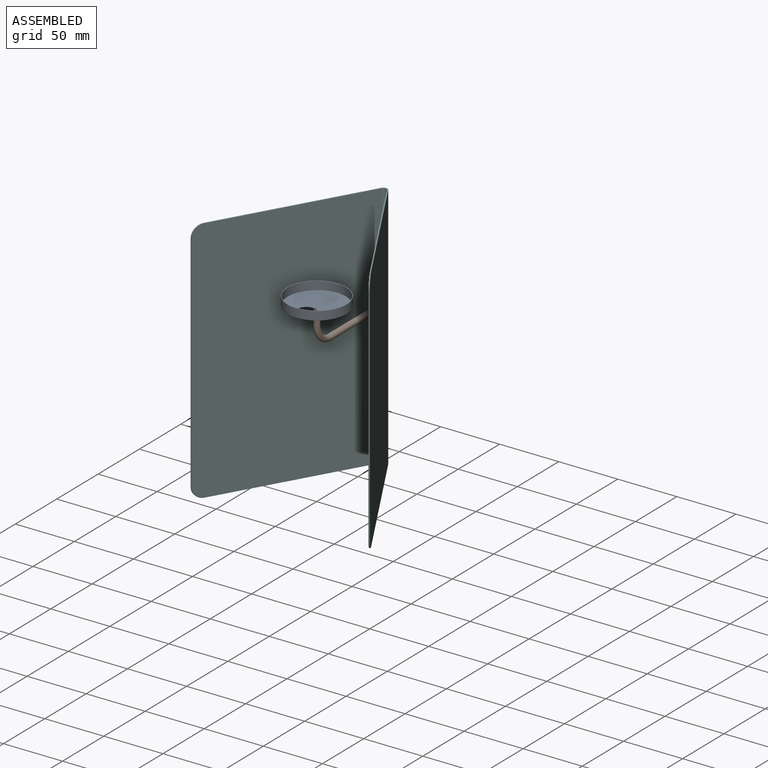
[diagram: assembled view]
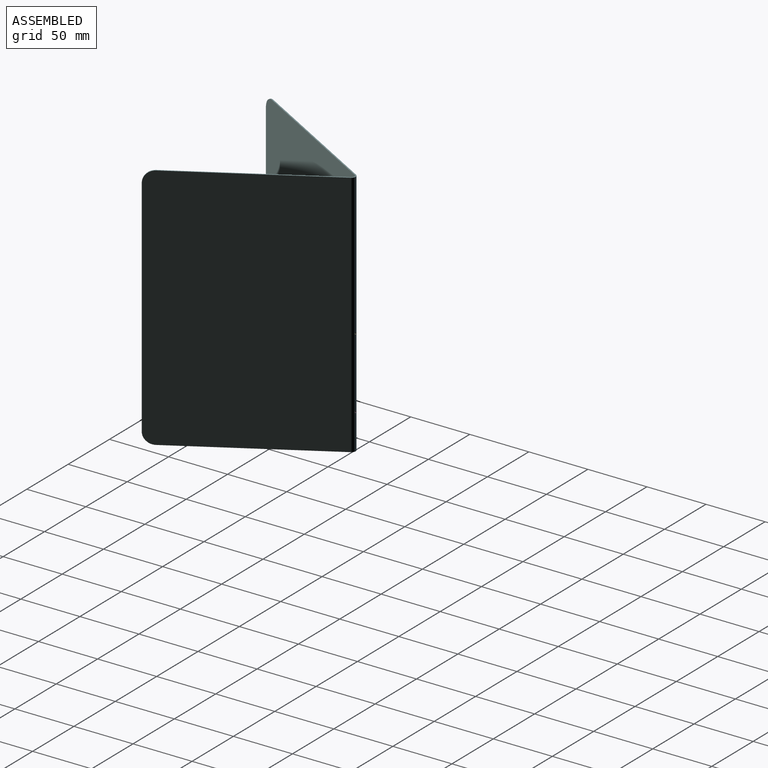
[diagram: assembled view, second angle]
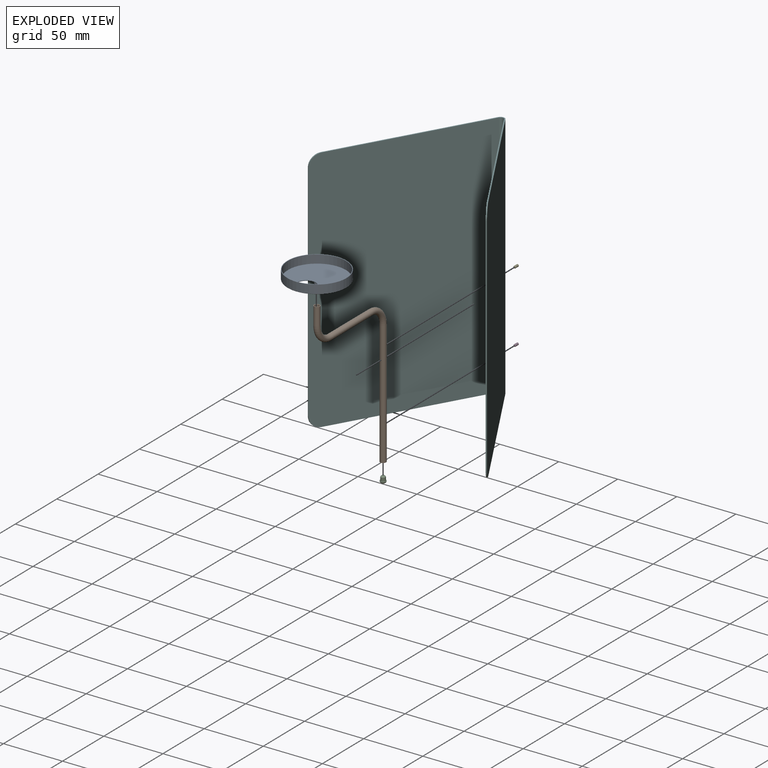
[diagram: exploded view]
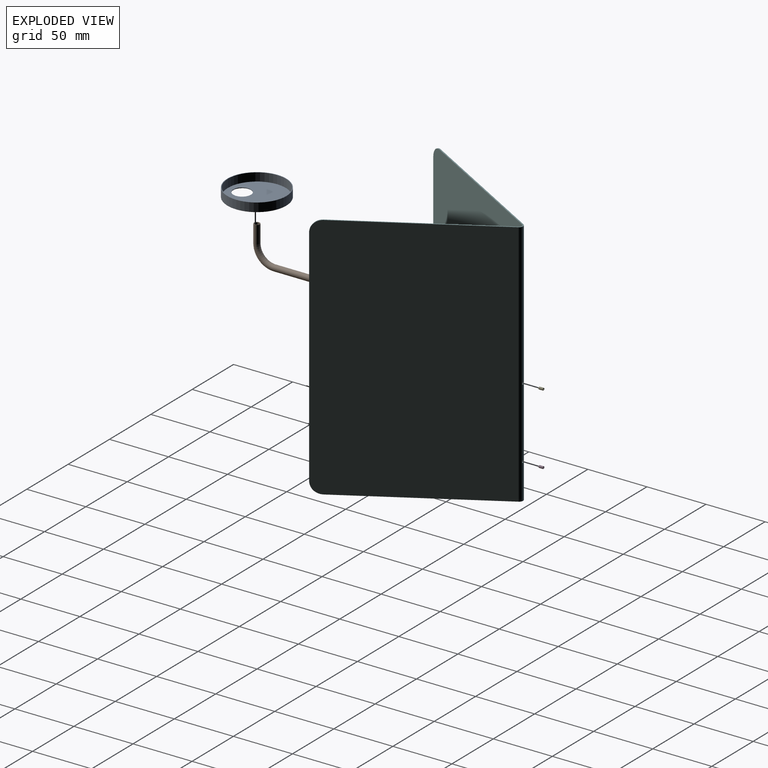
[diagram: exploded view, second angle]
ASSEMBLY  parts=6 mates=5
PART A: 11 faces, bbox 54.1x54.1x17.5 mm
  f0: cylinder r=25mm len=50mm, axis (0,0,-1), area 1131mm2, adj f3,f5
  f1: plane 49.4x49.4mm, normal (0,0,-1), area 1726.1mm2, adj f5,f6,f10
  f2: cylinder r=24.5mm len=49mm, axis (0,0,-1), area 1077.6mm2, adj f3,f4
  f3: plane 50x50mm, normal (0,0,1), area 77.8mm2, adj f0,f2
  f4: plane 49x49mm, normal (0,0,1), area 1709mm2, adj f2,f6
  f5: torus R=24.7mm, axis (0,0,1), area 73.7mm2, adj f0,f1
  f6: cylinder r=7.5mm len=15mm, axis (0,0,1), area 23.6mm2, adj f1,f4
  f7: cylinder r=2mm len=8.9mm, axis (0,0,1), area 111.8mm2, adj f9,f10
  f8: plane 2x2mm, normal (0,0,-1), area 3.1mm2, adj f9
  f9: cone r=1mm half-angle=45deg, axis (0,0,1), area 13.3mm2, adj f7,f8
  f10: torus R=2.1mm, axis (0,0,1), area 2mm2, adj f1,f7
PART B: 15 faces, bbox 5x87.9x150 mm
  f0: cylinder r=2.5mm len=105mm, axis (0,0,1), area 1642.9mm2, adj f1,f5,f13,f14
  f1: torus R=15mm, axis (1,0,0), area 370.1mm2, adj f0,f2
  f2: cylinder r=2.5mm len=50mm, axis (0,-1,0), area 785.4mm2, adj f1,f3
  f3: torus R=15mm, axis (-1,0,0), area 370.1mm2, adj f2,f4
  f4: cylinder r=2.5mm len=15mm, axis (0,0,1), area 235.6mm2, adj f3,f6
  f5: plane 5x5mm, normal (0,0,-1), area 7.1mm2, adj f0,f7
  f6: plane 5x5mm, normal (0,0,1), area 5.8mm2, adj f4,f12
  f7: cylinder r=2mm len=105mm, axis (0,0,1), area 1313mm2, adj f5,f8,f13,f14
  f8: torus R=15mm, axis (1,0,0), area 296.1mm2, adj f7,f9
  f9: cylinder r=2mm len=50mm, axis (0,-1,0), area 628.3mm2, adj f8,f10
  f10: torus R=15mm, axis (-1,0,0), area 296.1mm2, adj f9,f11
  f11: cylinder r=2mm len=14.9mm, axis (0,0,1), area 187.2mm2, adj f10,f12
  f12: torus R=2.1mm, axis (0,0,1), area 2mm2, adj f6,f11
  f13: cylinder r=1mm len=2mm, axis (0,-1,0), area 3.3mm2, adj f0,f7
  f14: cylinder r=1mm len=2mm, axis (0,-1,0), area 3.3mm2, adj f0,f7
PART C: 6 faces, bbox 5x5x6 mm
  f0: plane 1x1mm, normal (0,0,-1), area 0.8mm2, adj f2
  f1: plane 5x5mm, normal (0,0,1), area 7.1mm2, adj f2,f3
  f2: torus R=0.5mm, axis (0,0,-1), area 35mm2, adj f0,f1
  f3: cylinder r=2mm len=4mm, axis (0,0,-1), area 37.7mm2, adj f1,f5
  f4: plane 2x2mm, normal (0,0,1), area 3.1mm2, adj f5
  f5: cone r=1mm half-angle=45deg, axis (0,0,-1), area 13.3mm2, adj f3,f4
PART D: 17 faces, bbox 2x4x2 mm
  f0: plane 2x2mm, normal (0,1,0), area 1.7mm2, adj f1,f4,f5,f6,f7,f8,f9
  f1: cylinder r=1mm len=3.5mm, axis (0,1,0), area 22mm2, adj f0,f3
  f2: plane 1x1mm, normal (0,-1,0), area 0.8mm2, adj f3
  f3: cone r=0.5mm half-angle=45deg, axis (0,1,0), area 3.3mm2, adj f1,f2
  f4: plane 0.75x0.3mm, normal (-1,0,0), area 0.2mm2, adj f0,f5,f9,f13
  f5: plane 0.65x0.38mm, normal (-0.5,0,0.87), area 0.2mm2, adj f0,f4,f6,f15
  f6: plane 0.65x0.38mm, normal (0.5,0,0.87), area 0.2mm2, adj f0,f5,f7,f16
  f7: plane 0.75x0.3mm, normal (1,0,0), area 0.2mm2, adj f0,f6,f8,f14
  f8: plane 0.65x0.38mm, normal (0.5,0,-0.87), area 0.2mm2, adj f0,f7,f9,f12
  f9: plane 0.65x0.38mm, normal (-0.5,0,-0.87), area 0.2mm2, adj f0,f4,f8,f11
  f10: plane 1.04x0.9mm, normal (0,1,0), area 0.7mm2, adj f11,f12,f13,f14,f15,f16
  f11: plane 0.65x0.49mm, normal (-0.35,0.71,-0.61), area 0.2mm2, adj f9,f10,f12,f13
  f12: plane 0.65x0.49mm, normal (0.35,0.71,-0.61), area 0.2mm2, adj f8,f10,f11,f14
  f13: plane 0.75x0.2mm, normal (-0.71,0.71,0), area 0.2mm2, adj f4,f10,f11,f15
  f14: plane 0.75x0.2mm, normal (0.71,0.71,0), area 0.2mm2, adj f7,f10,f12,f16
  f15: plane 0.65x0.49mm, normal (-0.35,0.71,0.61), area 0.2mm2, adj f5,f10,f13,f16
  f16: plane 0.65x0.49mm, normal (0.35,0.71,0.61), area 0.2mm2, adj f6,f10,f14,f15
PART E: same geometry as D
PART F: 16 faces, bbox 151.7x128.5x210 mm
  f0: cylinder r=2.5mm len=210mm, axis (0,0,-1), area 1093.5mm2, adj f3,f4,f8,f9,f14,f15
  f1: cylinder r=3.5mm len=210mm, axis (0,0,-1), area 1533.5mm2, adj f6,f7,f8,f9,f14,f15
  f2: plane 190x0.87mm, normal (-0.5,-0.87,0), area 190mm2, adj f3,f7,f11,f13
  f3: plane 210x126.25mm, normal (0.87,-0.5,0), area 30564.6mm2, adj f0,f2,f8,f9,f11,f13
  f4: plane 210x126.25mm, normal (-0.87,-0.5,0), area 30564.6mm2, adj f0,f5,f8,f9,f10,f12
  f5: plane 190x0.87mm, normal (0.5,-0.87,0), area 190mm2, adj f4,f6,f10,f12
  f6: plane 210x126.25mm, normal (0.87,0.5,0), area 30564.6mm2, adj f1,f5,f8,f9,f10,f12
  f7: plane 210x126.25mm, normal (-0.87,0.5,0), area 30564.6mm2, adj f1,f2,f8,f9,f11,f13
  f8: plane 141.74x119.84mm, normal (0,0,1), area 277.8mm2, adj f0,f1,f3,f4,f6,f7,f12,f13
  f9: plane 141.74x119.84mm, normal (0,0,-1), area 277.8mm2, adj f0,f1,f3,f4,f6,f7,f10,f11
  f10: cylinder r=10mm len=10mm, axis (0.87,0.5,0), area 15.7mm2, adj f4,f5,f6,f9
  f11: cylinder r=10mm len=10mm, axis (0.87,-0.5,0), area 15.7mm2, adj f2,f3,f7,f9
  f12: cylinder r=10mm len=10mm, axis (-0.87,-0.5,0), area 15.7mm2, adj f4,f5,f6,f8
  f13: cylinder r=10mm len=10mm, axis (-0.87,0.5,0), area 15.7mm2, adj f2,f3,f7,f8
  f14: cylinder r=1mm len=2mm, axis (0,1,0), area 6.5mm2, adj f0,f1
  f15: cylinder r=1mm len=2mm, axis (0,1,0), area 6.5mm2, adj f0,f1
PLACE A t=(0,-85.11,151.9)mm
PLACE B t=(0,-5.11,2)mm
PLACE C t=(0,-5.11,2)mm
PLACE D t=(0,-1.49,30)mm
PLACE E t=(0,-1.49,90)mm
PLACE F at identity
MATE fastened E.f1 <-> F.f14  axis (0,1,0) through (0,-1.49,90)mm
MATE fastened B.f14 <-> F.f15  axis (0,-1,0) through (0,-2.61,30)mm
MATE revolute C.f3 <-> B.f7  axis (0,0,1) through (0,-5.11,6)mm
MATE fastened F.f15 <-> D.f1  axis (0,1,0) through (0,-1.49,30)mm
MATE revolute A.f7 <-> B.f11  axis (0,0,-1) through (0,-85.11,141.9)mm
